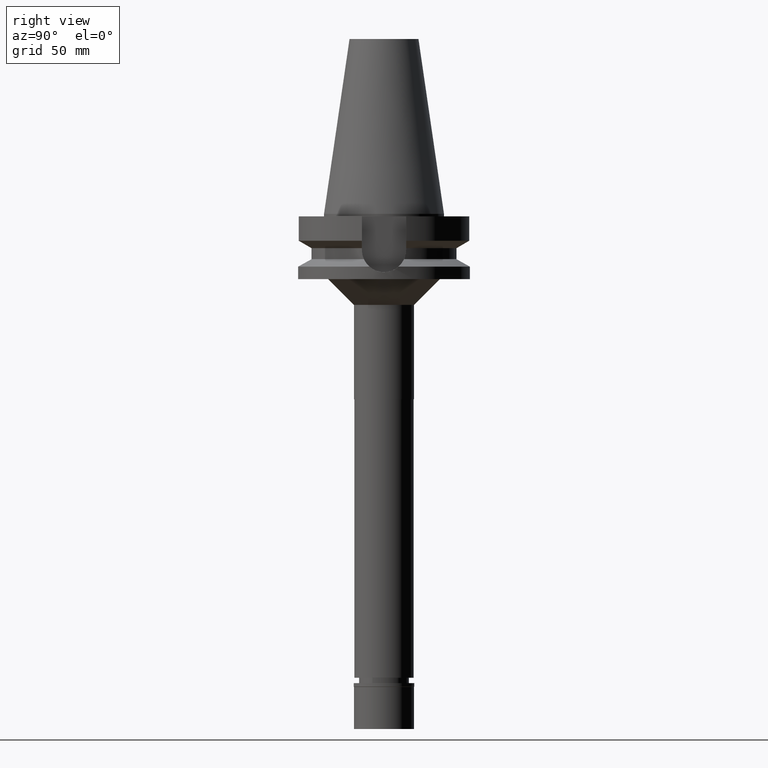
[diagram: clean part render]
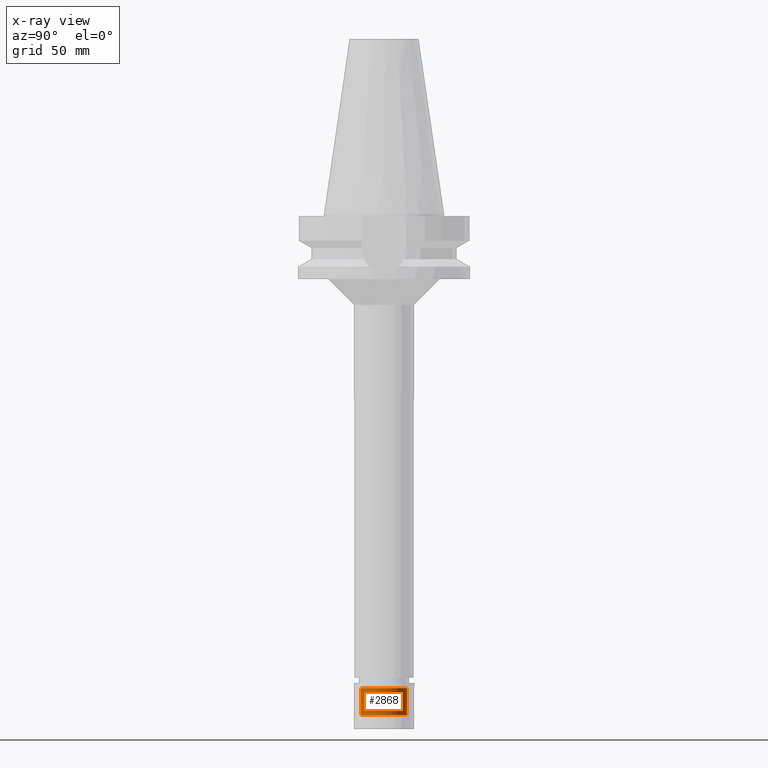
[diagram: x-ray — body ghosted, one internal face saturated and labeled with its STEP entity id]
A machine part, right view, then the same camera in x-ray: the body is ghosted and one INTERNAL B-rep face — a face not visible from any outside direction — is saturated and labeled: STEP entity #2868.
In plain terms, the highlighted cylindrical surface (edge-blend (fillet) strip) has radius 13.5 mm, axis along (0, 0, -1).
Its self-contained STEP definition (entity closure, byte-faithful):
#73 = LINE ( 'NONE', #1069, #214 ) ;
#108 = DIRECTION ( 'NONE',  ( 0.0000000000000000000, -1.000000000000000000, 0.0000000000000000000 ) ) ;
#184 = EDGE_CURVE ( 'NONE', #1158, #942, #1798, .T. ) ;
#212 = DIRECTION ( 'NONE',  ( 0.0000000000000000000, 0.0000000000000000000, 1.000000000000000000 ) ) ;
#214 = VECTOR ( 'NONE', #2610, 1000.000000000000000 ) ;
#516 = CARTESIAN_POINT ( 'NONE',  ( 0.0000000000000000000, 13.50000000000000000, -18.70000000000000284 ) ) ;
#594 = AXIS2_PLACEMENT_3D ( 'NONE', #654, #212, #1660 ) ;
#596 = CYLINDRICAL_SURFACE ( 'NONE', #1493, 13.50000000000000000 ) ;
#654 = CARTESIAN_POINT ( 'NONE',  ( 0.0000000000000000000, 0.0000000000000000000, -2.899999999999999911 ) ) ;
#657 = EDGE_LOOP ( 'NONE', ( #1131, #688, #1068, #1128 ) ) ;
#688 = ORIENTED_EDGE ( 'NONE', *, *, #1910, .T. ) ;
#874 = VERTEX_POINT ( 'NONE', #2442 ) ;
#942 = VERTEX_POINT ( 'NONE', #1285 ) ;
#1047 = LINE ( 'NONE', #516, #2429 ) ;
#1055 = DIRECTION ( 'NONE',  ( 0.0000000000000000000, 0.0000000000000000000, -1.000000000000000000 ) ) ;
#1068 = ORIENTED_EDGE ( 'NONE', *, *, #2064, .T. ) ;
#1069 = CARTESIAN_POINT ( 'NONE',  ( 0.0000000000000000000, -13.50000000000000000, -18.70000000000000284 ) ) ;
#1128 = ORIENTED_EDGE ( 'NONE', *, *, #1304, .F. ) ;
#1131 = ORIENTED_EDGE ( 'NONE', *, *, #184, .T. ) ;
#1158 = VERTEX_POINT ( 'NONE', #2454 ) ;
#1285 = CARTESIAN_POINT ( 'NONE',  ( 0.0000000000000000000, -13.50000000000000000, -18.70000000000000284 ) ) ;
#1302 = DIRECTION ( 'NONE',  ( 0.0000000000000000000, 0.0000000000000000000, 1.000000000000000000 ) ) ;
#1304 = EDGE_CURVE ( 'NONE', #1158, #874, #1047, .T. ) ;
#1362 = CARTESIAN_POINT ( 'NONE',  ( 0.0000000000000000000, 0.0000000000000000000, 0.0000000000000000000 ) ) ;
#1493 = AXIS2_PLACEMENT_3D ( 'NONE', #1362, #2350, #108 ) ;
#1660 = DIRECTION ( 'NONE',  ( 0.0000000000000000000, -1.000000000000000000, 0.0000000000000000000 ) ) ;
#1798 = CIRCLE ( 'NONE', #2621, 13.50000000000000000 ) ;
#1804 = CIRCLE ( 'NONE', #594, 13.50000000000000000 ) ;
#1910 = EDGE_CURVE ( 'NONE', #942, #2328, #73, .T. ) ;
#2064 = EDGE_CURVE ( 'NONE', #2328, #874, #1804, .T. ) ;
#2118 = CARTESIAN_POINT ( 'NONE',  ( 0.0000000000000000000, -13.50000000000000000, -2.899999999999999911 ) ) ;
#2268 = DIRECTION ( 'NONE',  ( 0.0000000000000000000, 1.000000000000000000, 0.0000000000000000000 ) ) ;
#2328 = VERTEX_POINT ( 'NONE', #2118 ) ;
#2350 = DIRECTION ( 'NONE',  ( 0.0000000000000000000, 0.0000000000000000000, -1.000000000000000000 ) ) ;
#2429 = VECTOR ( 'NONE', #1302, 1000.000000000000000 ) ;
#2442 = CARTESIAN_POINT ( 'NONE',  ( 0.0000000000000000000, 13.50000000000000000, -2.899999999999999911 ) ) ;
#2454 = CARTESIAN_POINT ( 'NONE',  ( 0.0000000000000000000, 13.50000000000000000, -18.70000000000000284 ) ) ;
#2610 = DIRECTION ( 'NONE',  ( 0.0000000000000000000, 0.0000000000000000000, 1.000000000000000000 ) ) ;
#2621 = AXIS2_PLACEMENT_3D ( 'NONE', #3032, #1055, #2268 ) ;
#2838 = FACE_OUTER_BOUND ( 'NONE', #657, .T. ) ;
#2868 = ADVANCED_FACE ( 'NONE', ( #2838 ), #596, .F. ) ;
#3032 = CARTESIAN_POINT ( 'NONE',  ( 0.0000000000000000000, 0.0000000000000000000, -18.70000000000000284 ) ) ;